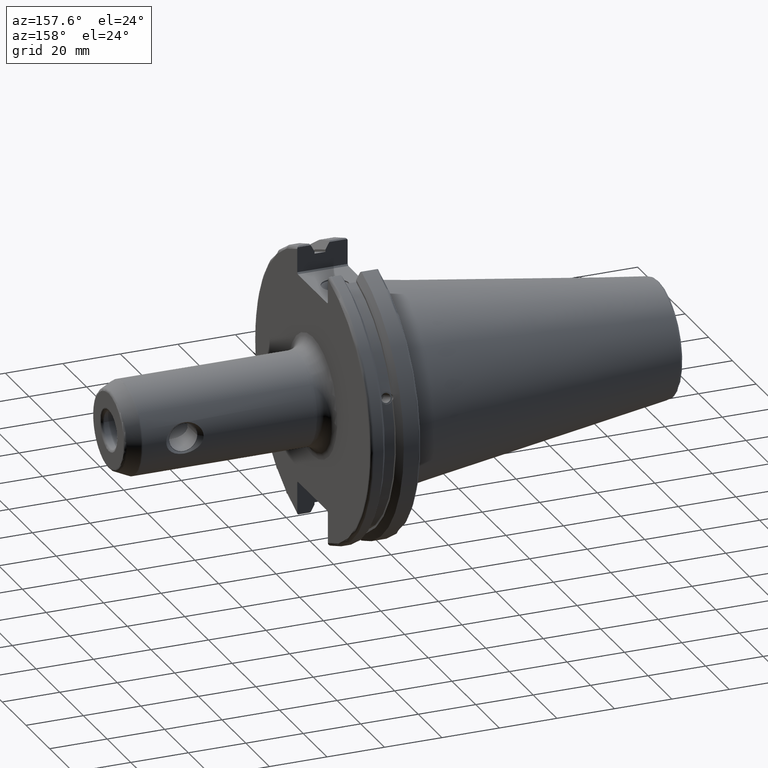
[diagram: clean part render]
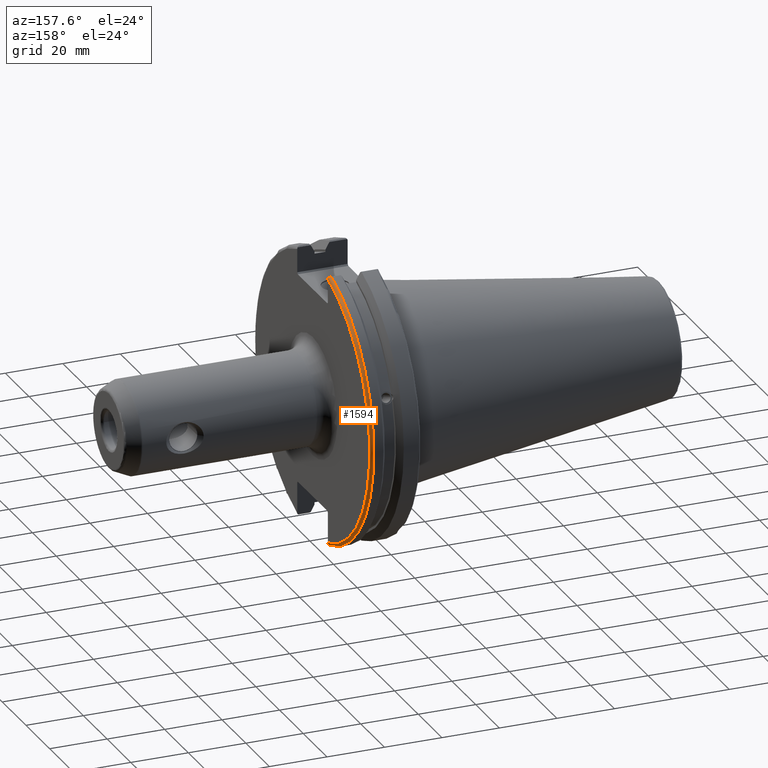
[diagram: same view with one face highlighted and labeled with its STEP entity id]
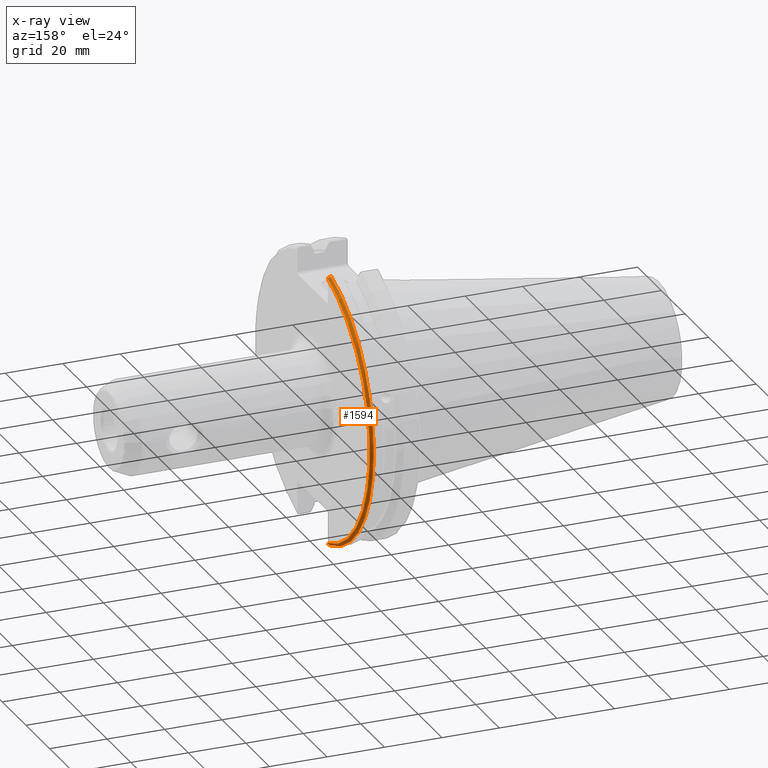
[diagram: x-ray of the same camera — body ghosted, the highlighted face saturated]
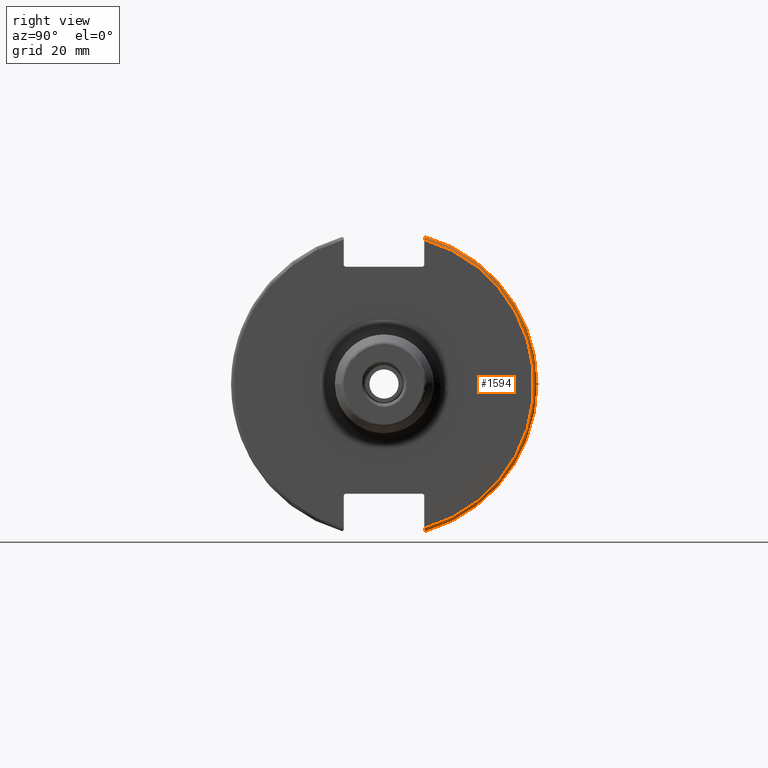
[diagram: same view with one face highlighted and labeled with its STEP entity id]
A machine part, auxiliary view. The second image highlights one B-rep face of the part: STEP entity #1594.
The next image is the same camera in x-ray: the body ghosted, the highlighted face saturated — about 0% of this face is hidden behind the body in this view.
A second angle (right view) of the same face is appended — the face is thin or edge-on in the first view.
In plain terms, the highlighted toroidal blend (fillet) surface has major radius 48.2125 mm and minor (blend) radius 1 mm.
Its self-contained STEP definition (entity closure, byte-faithful):
#39=TOROIDAL_SURFACE('',#1762,48.2125,1.);
#161=FACE_OUTER_BOUND('',#266,.T.);
#266=EDGE_LOOP('',(#1269,#1270,#1271,#1272,#1273,#1274));
#348=B_SPLINE_CURVE_WITH_KNOTS('',3,(#3013,#3014,#3015,#3016,#3017,#3018),
 .UNSPECIFIED.,.F.,.F.,(4,2,4),(0.0976892167532868,0.112000071948293,0.150881870548587),
 .UNSPECIFIED.);
#349=B_SPLINE_CURVE_WITH_KNOTS('',3,(#3020,#3021,#3022,#3023,#3024,#3025),
 .UNSPECIFIED.,.F.,.F.,(4,2,4),(0.452859340315922,0.491741138916218,0.506051994111221),
 .UNSPECIFIED.);
#350=B_SPLINE_CURVE_WITH_KNOTS('',3,(#3027,#3028,#3029,#3030,#3031,#3032,
#3033,#3034),.UNSPECIFIED.,.F.,.F.,(4,2,2,4),(-0.104075769062722,-0.0730268503455479,
-0.0343639873656263,0.),.UNSPECIFIED.);
#351=B_SPLINE_CURVE_WITH_KNOTS('',3,(#3037,#3038,#3039,#3040,#3041,#3042,
#3043,#3044),.UNSPECIFIED.,.F.,.F.,(4,2,2,4),(0.,0.0343639873656263,0.0730268503455477,
0.104075769062723),.UNSPECIFIED.);
#572=CIRCLE('',#1697,48.2125);
#605=CIRCLE('',#1763,49.2125);
#656=VERTEX_POINT('',#2427);
#657=VERTEX_POINT('',#2428);
#739=VERTEX_POINT('',#3012);
#740=VERTEX_POINT('',#3019);
#741=VERTEX_POINT('',#3026);
#742=VERTEX_POINT('',#3035);
#828=EDGE_CURVE('',#656,#657,#572,.T.);
#935=EDGE_CURVE('',#739,#656,#348,.T.);
#936=EDGE_CURVE('',#657,#740,#349,.T.);
#937=EDGE_CURVE('',#740,#741,#350,.T.);
#938=EDGE_CURVE('',#741,#742,#605,.T.);
#939=EDGE_CURVE('',#742,#739,#351,.T.);
#1269=ORIENTED_EDGE('',*,*,#935,.T.);
#1270=ORIENTED_EDGE('',*,*,#828,.T.);
#1271=ORIENTED_EDGE('',*,*,#936,.T.);
#1272=ORIENTED_EDGE('',*,*,#937,.T.);
#1273=ORIENTED_EDGE('',*,*,#938,.T.);
#1274=ORIENTED_EDGE('',*,*,#939,.T.);
#1594=ADVANCED_FACE('',(#161),#39,.T.);
#1697=AXIS2_PLACEMENT_3D('',#2429,#1912,#1913);
#1762=AXIS2_PLACEMENT_3D('',#3011,#2082,#2083);
#1763=AXIS2_PLACEMENT_3D('',#3036,#2084,#2085);
#1912=DIRECTION('center_axis',(-1.,0.,0.));
#1913=DIRECTION('ref_axis',(0.,1.,-6.12323399573677E-17));
#2082=DIRECTION('center_axis',(1.,0.,0.));
#2083=DIRECTION('ref_axis',(0.,0.,-1.));
#2084=DIRECTION('center_axis',(1.,0.,0.));
#2085=DIRECTION('ref_axis',(0.,1.,-6.12323399573677E-17));
#2427=CARTESIAN_POINT('',(19.05,12.95,46.4407434937254));
#2428=CARTESIAN_POINT('',(19.05,12.95,-46.4407434937254));
#2429=CARTESIAN_POINT('Origin',(19.05,0.,0.));
#3011=CARTESIAN_POINT('Origin',(18.05,0.,0.));
#3012=CARTESIAN_POINT('',(18.9055020570566,12.95,46.9780755322918));
#3013=CARTESIAN_POINT('Ctrl Pts',(18.9055020570566,12.95,46.9780755322918));
#3014=CARTESIAN_POINT('Ctrl Pts',(18.9315844351616,12.95,46.9333752207329));
#3015=CARTESIAN_POINT('Ctrl Pts',(18.9538432708766,12.95,46.887363294568));
#3016=CARTESIAN_POINT('Ctrl Pts',(19.0204646992875,12.95,46.7230464903732));
#3017=CARTESIAN_POINT('Ctrl Pts',(19.05,12.95,46.5703494890597));
#3018=CARTESIAN_POINT('Ctrl Pts',(19.05,12.95,46.4407434937254));
#3019=CARTESIAN_POINT('',(18.9055020570566,12.95,-46.9780755322918));
#3020=CARTESIAN_POINT('Ctrl Pts',(19.05,12.95,-46.4407434937254));
#3021=CARTESIAN_POINT('Ctrl Pts',(19.05,12.95,-46.5703494890597));
#3022=CARTESIAN_POINT('Ctrl Pts',(19.0204646992875,12.95,-46.7230464903732));
#3023=CARTESIAN_POINT('Ctrl Pts',(18.9538432708766,12.95,-46.887363294568));
#3024=CARTESIAN_POINT('Ctrl Pts',(18.9315844351616,12.95,-46.9333752207329));
#3025=CARTESIAN_POINT('Ctrl Pts',(18.9055020570566,12.95,-46.9780755322918));
#3026=CARTESIAN_POINT('',(18.05,13.4317035994433,-47.3440544806494));
#3027=CARTESIAN_POINT('Ctrl Pts',(18.9055020570566,12.95,-46.9780755322918));
#3028=CARTESIAN_POINT('Ctrl Pts',(18.8571496772125,13.0300321736484,-47.0388807469102));
#3029=CARTESIAN_POINT('Ctrl Pts',(18.792640282015,13.1083611826073,-47.0983919657547));
#3030=CARTESIAN_POINT('Ctrl Pts',(18.6399248789208,13.2478194810695,-47.2043467509586));
#3031=CARTESIAN_POINT('Ctrl Pts',(18.5186188350904,13.3242014686233,-47.2623787015413));
#3032=CARTESIAN_POINT('Ctrl Pts',(18.2983889675417,13.4067722493645,-47.3251126473446));
#3033=CARTESIAN_POINT('Ctrl Pts',(18.1645466245521,13.4317035994433,-47.3440544806494));
#3034=CARTESIAN_POINT('Ctrl Pts',(18.05,13.4317035994433,-47.3440544806494));
#3035=CARTESIAN_POINT('',(18.05,13.4317035994433,47.3440544806494));
#3036=CARTESIAN_POINT('Origin',(18.05,0.,0.));
#3037=CARTESIAN_POINT('Ctrl Pts',(18.05,13.4317035994433,47.3440544806494));
#3038=CARTESIAN_POINT('Ctrl Pts',(18.1645466245521,13.4317035994433,47.3440544806494));
#3039=CARTESIAN_POINT('Ctrl Pts',(18.2983889675417,13.4067722493645,47.3251126473446));
#3040=CARTESIAN_POINT('Ctrl Pts',(18.5186188350904,13.3242014686233,47.2623787015413));
#3041=CARTESIAN_POINT('Ctrl Pts',(18.6399248789208,13.2478194810695,47.2043467509586));
#3042=CARTESIAN_POINT('Ctrl Pts',(18.792640282015,13.1083611826073,47.0983919657547));
#3043=CARTESIAN_POINT('Ctrl Pts',(18.8571496772125,13.0300321736484,47.0388807469102));
#3044=CARTESIAN_POINT('Ctrl Pts',(18.9055020570566,12.95,46.9780755322918));